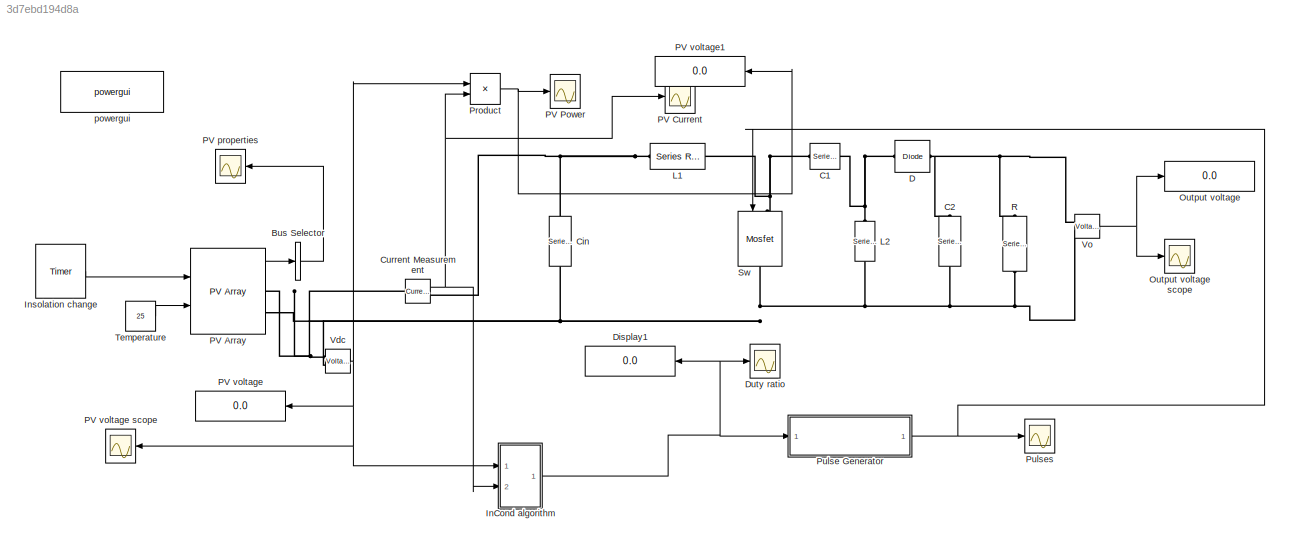
MODEL slx_3d7ebd194d8a
KIND model
CONFIG AbsTol = auto
CONFIG FixedStep = auto
CONFIG MaxStep = auto
CONFIG MinStep = auto
CONFIG RelTol = 1e-3
CONFIG SampleTimeConstraint = Unconstrained
CONFIG Solver = ode45
CONFIG SolverMode = Auto
CONFIG SolverName = ode45
CONFIG StartTime = 0.0
CONFIG StopTime = .02
BLOCK [BusSelector] Bus Selector
  OutputAsBus = on
  OutputSignals = V_PV,I_PV
  Ports = [1, 1]
BLOCK [Reference] C1  REF=powerlib/Elements/Series RLC Branch
  BranchType = C
  Capacitance = 20e-6
  Inductance = 1e-3
  InitialCurrent = 0
  InitialVoltage = 0
  LConnTagsString = __new0
  Measurements = None
  Ports = [0, 0, 0, 0, 0, 1, 1]
  RConnTagsString = __new0
  Resistance = 100
  SetiL0 = off
  Setx0 = off
  SourceBlock = powerlib/Elements/Series RLC Branch
  SourceType = Series RLC Branch
BLOCK [Reference] C2  REF=powerlib/Elements/Series RLC Branch
  BranchType = C
  Capacitance = 150e-6
  Inductance = 1e-3
  InitialCurrent = 0
  InitialVoltage = 0
  LConnTagsString = __new0
  Measurements = None
  Ports = [0, 0, 0, 0, 0, 1, 1]
  RConnTagsString = __new0
  Resistance = 1
  SetiL0 = off
  Setx0 = off
  SourceBlock = powerlib/Elements/Series RLC Branch
  SourceType = Series RLC Branch
BLOCK [Reference] Cin  REF=powerlib/Elements/Series RLC Branch
  BranchType = C
  Capacitance = 440e-6
  Inductance = 1e-3
  InitialCurrent = 0
  InitialVoltage = 0
  LConnTagsString = __new0
  Measurements = None
  Ports = [0, 0, 0, 0, 0, 1, 1]
  RConnTagsString = __new0
  Resistance = 1
  SetiL0 = off
  Setx0 = off
  SourceBlock = powerlib/Elements/Series RLC Branch
  SourceType = Series RLC Branch
BLOCK [Reference] Current Measurement  REF=powerlib/Measurements/Current Measurement
  OutputType = Complex
  PSBequivalent = 0
  PhasorSimulation = off
  Ports = [0, 1, 0, 0, 0, 1, 1]
  SourceBlock = powerlib/Measurements/Current Measurement
  SourceType = Current Measurement
  UserDataPersistent = on
BLOCK [Reference] D  REF=powerlib/Power
Electronics/Diode
  Cs = 250e-9
  IC = 0
  Lon = 0
  Measurements = off
  Ports = [0, 0, 0, 0, 0, 1, 1]
  Ron = 0.001
  Rs = 500
  SourceBlock = powerlib/Power\nElectronics/Diode
  SourceType = Diode
  UseSnubber = off
  Vf = .05
BLOCK [Display] Display1
  Decimation = 1
  Ports = [1]
BLOCK [Scope] Duty ratio
  DataFormat = StructureWithTime
  Floating = off
  LegendLocations = 0.87567      0.9061    0.093979     0.02999
  LimitDataPoints = off
  NumInputPorts = 1
  Ports = [1]
  SampleTime = 0
  SaveName = ScopeData1
  SaveToWorkspace = on
  ShowLegends = on
  TimeRange = 1
  YMax = 0.495
  YMin = 0.495
  ZoomMode = xonly
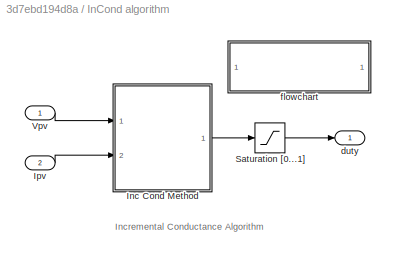
BLOCK [SubSystem] InCond algorithm
  Ports = [2, 1]
  RequestExecContextInheritance = off
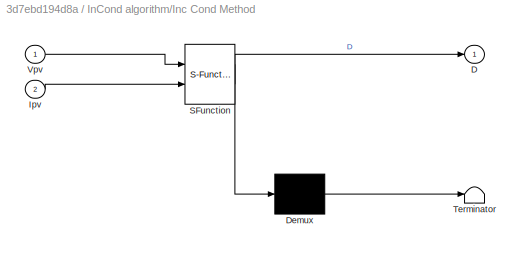
BLOCK [SubSystem] InCond algorithm/Inc Cond Method
  ErrorFcn = Stateflow.Translate.translate
  PermitHierarchicalResolution = ExplicitOnly
  Ports = [2, 1]
  RequestExecContextInheritance = off
  SFBlockType = Chart
  TreatAsAtomicUnit = on
BLOCK [Demux] InCond algorithm/Inc Cond Method/ Demux 
  Outputs = 1
  Ports = [1, 1]
BLOCK [S-Function] InCond algorithm/Inc Cond Method/ SFunction 
  EnableBusSupport = on
  FunctionName = sf_sfun
  PortCounts = [2 2]
  Ports = [2, 2]
  Tag = Stateflow S-Function INCOND 1
BLOCK [Terminator] InCond algorithm/Inc Cond Method/ Terminator 
BLOCK [Outport] InCond algorithm/Inc Cond Method/D
  IconDisplay = Port number
BLOCK [Inport] InCond algorithm/Inc Cond Method/Ipv
  IconDisplay = Port number
  Port = 2
BLOCK [Inport] InCond algorithm/Inc Cond Method/Vpv
  IconDisplay = Port number
BLOCK [Inport] InCond algorithm/Ipv
  IconDisplay = Port number
  OutDataTypeStr = double
  Port = 2
  PortDimensions = 1
  SampleTime = [0.0001,0]
  SamplingMode = Sample based
  SignalType = real
BLOCK [Saturate] InCond algorithm/Saturation [0...1]
  InputPortMap = u0
  LowerLimit = 0
  Ports = [1, 1]
  UpperLimit = 1
BLOCK [Inport] InCond algorithm/Vpv
  IconDisplay = Port number
  OutDataTypeStr = double
  PortDimensions = 1
  SampleTime = [0.0001,0]
  SamplingMode = Sample based
  SignalType = real
BLOCK [Outport] InCond algorithm/duty
  IconDisplay = Port number
  OutDataTypeStr = double
  PortDimensions = 1
  SampleTime = [0.0001,0]
  SamplingMode = Sample based
  SignalType = real
BLOCK [SubSystem] InCond algorithm/flowchart
  OpenFcn = winopen('INC.jpg');
  Ports = []
  RequestExecContextInheritance = off
BLOCK [Reference] Insolation change  REF=powerlib_extras/Control 
Blocks/Timer
  Ports = [0, 1]
  SourceBlock = powerlib_extras/Control \nBlocks/Timer
  SourceType = Timer
  e = [270   480]
  t = [0  .01]
BLOCK [Reference] L1  REF=powerlib/Elements/Series RLC Branch
  BranchType = L
  Capacitance = 1e-6
  Inductance = 90e-6
  InitialCurrent = 0
  InitialVoltage = 0
  LConnTagsString = __new0
  Measurements = None
  Ports = [0, 0, 0, 0, 0, 1, 1]
  RConnTagsString = __new0
  Resistance = 1
  SetiL0 = off
  Setx0 = off
  SourceBlock = powerlib/Elements/Series RLC Branch
  SourceType = Series RLC Branch
BLOCK [Reference] L2  REF=powerlib/Elements/Series RLC Branch
  BranchType = L
  Capacitance = 1e-6
  Inductance = 90e-6
  InitialCurrent = 0
  InitialVoltage = 0
  LConnTagsString = __new0
  Measurements = None
  Ports = [0, 0, 0, 0, 0, 1, 1]
  RConnTagsString = __new0
  Resistance = 1
  SetiL0 = off
  Setx0 = off
  SourceBlock = powerlib/Elements/Series RLC Branch
  SourceType = Series RLC Branch
BLOCK [Display] Output voltage
  Decimation = 1
  Ports = [1]
BLOCK [Scope] Output voltage scope
  DataFormat = StructureWithTime
  Floating = off
  LimitDataPoints = off
  NumInputPorts = 1
  Ports = [1]
  SampleTime = 0
  SaveName = ScopeData3
  SaveToWorkspace = on
  ShowLegends = on
  TimeRange = 1
  YMax = 2
  YMin = -1
  ZoomMode = xonly
BLOCK [Reference] PV Array  REF=re_lib/Solar/PV Array
  BAL = on
  I0 = 3.4157e-12
  IL = 1.2621
  Im = 1.18
  Isc = 1.26
  ModuleName = User-defined
  Ncell = 36
  Npar = 9
  Nser = 4
  PlotType = one module @ 25 deg.C & specified irradiances
  PlotWhenSelected = on
  Pm = 20.1544
  Ports = [2, 1, 0, 0, 0, 0, 2]
  Rs = 1.4265
  Rsh = 849.2491
  S_vec = [270 480]
  SourceBlock = re_lib/Solar/PV Array
  SourceType = PV array
  Tc = 1e-6
  Temp_C_vec = [ 45 25  ]
  Tfilter = 2e-5
  Vm = 17.08
  Voc = 21.17
  alpha_Isc = 0.00085806
  alpha_Isc_pc = 0.0681
  beta_Voc = -0.062261
  beta_Voc_pc = -0.2941
  nI = 0.85997
BLOCK [Scope] PV Current
  DataFormat = StructureWithTime
  Floating = off
  LimitDataPoints = off
  NumInputPorts = 1
  Ports = [1]
  SampleTime = 0
  SaveName = ScopeData7
  SaveToWorkspace = on
  ShowLegends = on
  TimeRange = 0.02
  YMax = 5.4284
  YMin = 5.4263
  ZoomMode = yonly
BLOCK [Scope] PV Power
  DataFormat = StructureWithTime
  Floating = off
  LimitDataPoints = off
  NumInputPorts = 1
  Ports = [1]
  SampleTime = 0
  SaveName = ScopeData6
  SaveToWorkspace = on
  ShowLegends = on
  TimeRange = 0.02
  YMax = 93
  YMin = 82
  ZoomMode = xonly
BLOCK [Scope] PV properties
  DataFormat = StructureWithTime
  Floating = off
  LegendLocations = 0.82648      0.6529    0.093979    0.053097
  LimitDataPoints = off
  NumInputPorts = 1
  Ports = [1]
  SampleTime = 0
  SaveToWorkspace = on
  ShowLegends = on
  TimeRange = 0.02
  YMax = 317.457627118644
  YMin = 77.45762711864404
  ZoomMode = xonly
BLOCK [Display] PV voltage
  Decimation = 1
  Ports = [1]
BLOCK [Scope] PV voltage scope
  DataFormat = StructureWithTime
  Floating = off
  LimitDataPoints = off
  NumInputPorts = 1
  Ports = [1]
  SampleTime = 0
  SaveName = ScopeData5
  SaveToWorkspace = on
  TimeRange = 1
  YMax = 500
  YMin = 0
  ZoomMode = yonly
BLOCK [Display] PV voltage1
  Decimation = 1
  Ports = [1]
BLOCK [Product] Product
  InputSameDT = off
  OutDataTypeStr = Inherit: Inherit via internal rule
  Ports = [2, 1]
  RndMeth = Floor
  SaturateOnIntegerOverflow = off
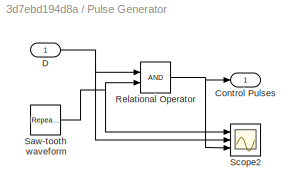
BLOCK [SubSystem] Pulse Generator
  Ports = [1, 1]
  RequestExecContextInheritance = off
BLOCK [Outport] Pulse Generator/Control Pulses
  IconDisplay = Port number
BLOCK [Inport] Pulse Generator/D
  IconDisplay = Port number
BLOCK [RelationalOperator] Pulse Generator/Relational Operator
  InputSameDT = off
  OutDataTypeStr = boolean
  Ports = [2, 1]
BLOCK [Reference] Pulse Generator/Saw-tooth waveform  REF=simulink/Sources/Repeating
Sequence
  Ports = [0, 1]
  SourceBlock = simulink/Sources/Repeating\nSequence
  SourceType = Repeating table
  rep_seq_t = [0 0.5 1]/F
  rep_seq_y = [0 1 0]
BLOCK [Scope] Pulse Generator/Scope2
  DataFormat = StructureWithTime
  Floating = off
  NumInputPorts = 3
  Ports = [3]
  SampleTime = 0
  SaveName = ScopeData2
  TimeRange = 0.004
  YMax = 1~0.7~1
  YMin = 5.55112e-017~0.7~0
  ZoomMode = xonly
BLOCK [Scope] Pulses
  DataFormat = StructureWithTime
  Floating = off
  LimitDataPoints = off
  NumInputPorts = 1
  Ports = [1]
  SampleTime = 0
  SaveName = ScopeData4
  SaveToWorkspace = on
  TimeRange = 1
  YMax = 2
  YMin = -1
  ZoomMode = xonly
BLOCK [Reference] R  REF=powerlib/Elements/Series RLC Branch
  BranchType = R
  Capacitance = 1e-6
  Inductance = 1e-3
  InitialCurrent = 0
  InitialVoltage = 0
  LConnTagsString = __new0
  Measurements = None
  Ports = [0, 0, 0, 0, 0, 1, 1]
  RConnTagsString = __new0
  Resistance = 10
  SetiL0 = off
  Setx0 = off
  SourceBlock = powerlib/Elements/Series RLC Branch
  SourceType = Series RLC Branch
BLOCK [Reference] Sw  REF=powerlib/Power
Electronics/Mosfet
  Cs = inf
  IC = 0
  Lon = 0
  Measurements = off
  Ports = [1, 0, 0, 0, 0, 1, 1]
  Rd = 0.01
  Ron = 0.1
  Rs = 1e5
  SourceBlock = powerlib/Power\nElectronics/Mosfet
  SourceType = Mosfet
  Vfd = 0
BLOCK [Constant] Temperature
  SampleTime = 2e-5
  Value = 25
  VectorParams1D = off
BLOCK [Reference] Vdc   REF=powerlib/Measurements/Voltage Measurement
  AttributesFormatString = \n
  OutputType = Magnitude
  PSBequivalent = 0
  PhasorSimulation = off
  Ports = [0, 1, 0, 0, 0, 2]
  SourceBlock = powerlib/Measurements/Voltage Measurement
  SourceType = Voltage Measurement
  Tag = PoWeRsYsTeMmEaSuReMeNt
BLOCK [Reference] Vo  REF=powerlib/Measurements/Voltage Measurement
  OutputType = Complex
  PSBequivalent = 0
  PhasorSimulation = off
  Ports = [0, 1, 0, 0, 0, 2]
  SourceBlock = powerlib/Measurements/Voltage Measurement
  SourceType = Voltage Measurement
BLOCK [Reference] powergui  REF=powerlib/powergui
  DisableRonSwitches = off
  DisableSnubberDevices = off
  DisableVfSwitches = on
  DisplayEquations = off
  DisplayStyle = 1
  EnableUseOfTLC = off
  ErrMax = 1e-4
  Frange = [0:2:500]
  FreqAxis = off
  FunctionMessages = off
  HookPort = off
  Interpol = off
  Iterations = 50
  MaxFrequency = 1000
  Pbase = 100e6
  Ports = []
  Priority = 1
  ResistiveCurrentMeasurement = off
  RestoreLinks = warning
  RmsSteady = 1
  SPID = on
  SampleTime = 50e-6
  ShowGrid = off
  SolverType = Tustin/Backward Euler (TBE)
  SourceBlock = powerlib/powergui
  SourceType = PSB option menu block
  StartTime = 0.0
  SwTol = 0
  Ts = 0
  UnitsV = kV
  UnitsW = MW
  UserDataPersistent = on
  Xlog = on
  Ylog = off
  ZoomFFT = on
  buscounter = 0
  cycles = 1
  display = off
  echomessages = off
  frequency = 50
  frequencyindice = 0
  frequencyindicesteady = 1
  fundamental = 60
  methode = off
  save = off
  structure = 0
  variable = ZData
  x0status = blocks
ANNOTATION InCond algorithm: Incremental Conductance Algorithm
LINE Bus Selector:1 -> PV properties:1
NET Current Measurement:1 -> InCond algorithm:2, PV Current:1, Product:2
LINE InCond algorithm/Inc Cond Method:1 -> InCond algorithm/Saturation [0...1]:1
LINE InCond algorithm/Ipv:1 -> InCond algorithm/Inc Cond Method:2
LINE InCond algorithm/Saturation [0...1]:1 -> InCond algorithm/duty:1
LINE InCond algorithm/Vpv:1 -> InCond algorithm/Inc Cond Method:1
NET InCond algorithm:1 -> Display1:1, Duty ratio:1, Pulse Generator:1
LINE Insolation change:1 -> PV Array:1
LINE PV Array:1 -> Bus Selector:1
NET Product:1 -> PV Power:1, PV voltage1:1
NET Pulse Generator/D:1 -> Pulse Generator/Relational Operator:1, Pulse Generator/Scope2:2
NET Pulse Generator/Relational Operator:1 -> Pulse Generator/Control Pulses:1, Pulse Generator/Scope2:3
NET Pulse Generator/Saw-tooth waveform:1 -> Pulse Generator/Relational Operator:2, Pulse Generator/Scope2:1
NET Pulse Generator:1 -> Pulses:1, Sw:1
LINE Temperature:1 -> PV Array:2
NET Vdc :1 -> InCond algorithm:1, PV voltage scope:1, PV voltage:1, Product:1
NET Vo:1 -> Output voltage scope:1, Output voltage:1
PNET net1: C1:LConn1 -- L1:RConn1 -- Sw:LConn1
PNET net2: C1:RConn1 -- D:LConn1 -- L2:LConn1
PNET net3: C2:LConn1 -- D:RConn1 -- R:LConn1 -- Vo:LConn1
PNET net4: C2:RConn1 -- Cin:RConn1 -- L2:RConn1 -- PV Array:RConn2 -- R:RConn1 -- Sw:RConn1 -- Vdc :LConn2 -- Vo:LConn2
PNET net5: Cin:LConn1 -- Current Measurement:RConn1 -- L1:LConn1
PNET net6: Current Measurement:LConn1 -- PV Array:RConn1 -- Vdc :LConn1
note: NET lines group one-source signal fan-out (src -> all destinations, sorted); 1:1 wires keep LINE; PNET lines group multi-terminal physical nets as a canonical sorted terminal list (undirected conserving connections); 2-terminal nets keep the pairwise PLINE form
CHART InCond algorithm/Inc Cond Method states=4 transitions=12
  STATE_LABEL 'SAMPLEandCALCULATE\nentry:\ndeltaV = Vpv - Vprev;\ndeltaI = Ipv - Iprev;\nd = D;'
  STATE_LABEL 'INCREMENT_DUTY\nentry:\nd = d + deltad;'
  STATE_LABEL 'DECREMENT_DUTY\nentry:\nd = d - deltad;'
  STATE_LABEL 'RETURN\nentry:\nVprev = Vpv; Iprev = Ipv;\nD = d;'
